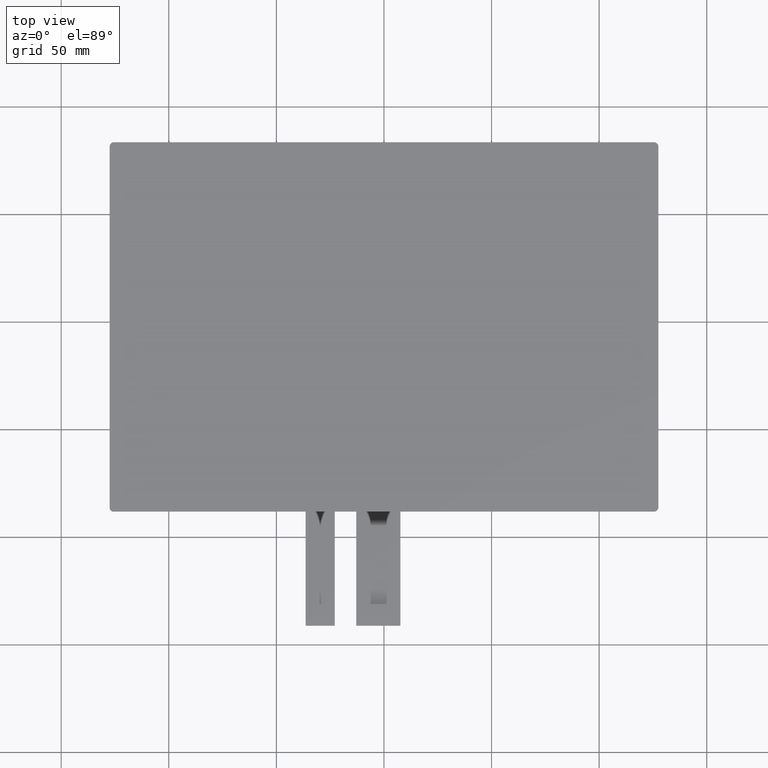
[diagram: clean part render]
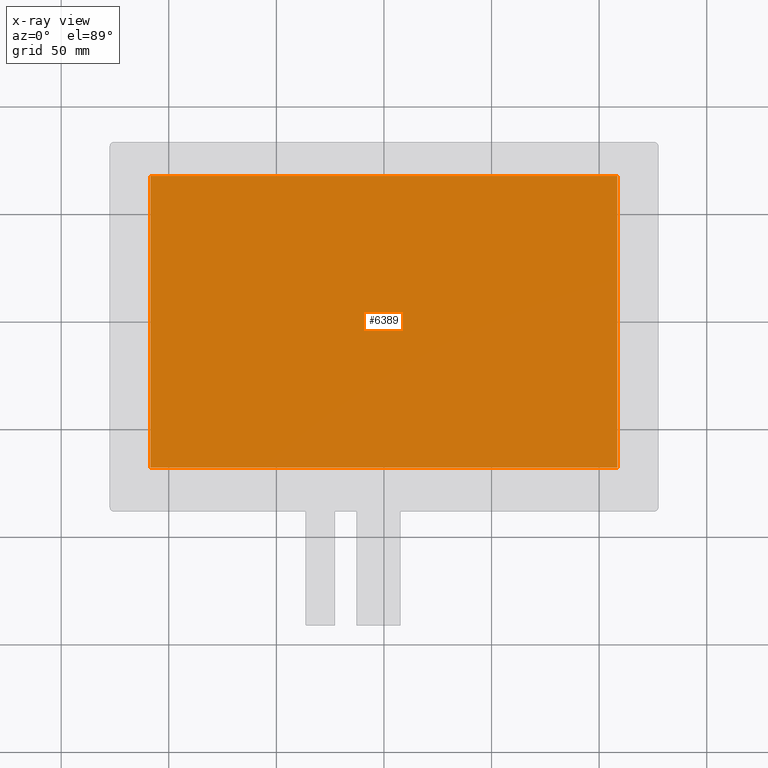
[diagram: x-ray — body ghosted, one internal face saturated and labeled with its STEP entity id]
A machine part, top view, then the same camera in x-ray: the body is ghosted and one INTERNAL B-rep face — a face not visible from any outside direction — is saturated and labeled: STEP entity #6389.
In plain terms, the highlighted planar face has unit normal (0, 0, -1).
Its self-contained STEP definition (entity closure, byte-faithful):
#345=FACE_OUTER_BOUND('',#657,.T.);
#657=EDGE_LOOP('',(#5747,#5748,#5749,#5750));
#1539=LINE('',#10073,#2427);
#1540=LINE('',#10075,#2428);
#1541=LINE('',#10077,#2429);
#1542=LINE('',#10078,#2430);
#2427=VECTOR('',#8257,10.);
#2428=VECTOR('',#8258,10.);
#2429=VECTOR('',#8259,10.);
#2430=VECTOR('',#8260,10.);
#3051=VERTEX_POINT('',#10071);
#3052=VERTEX_POINT('',#10072);
#3053=VERTEX_POINT('',#10074);
#3054=VERTEX_POINT('',#10076);
#3951=EDGE_CURVE('',#3051,#3052,#1539,.T.);
#3952=EDGE_CURVE('',#3053,#3051,#1540,.T.);
#3953=EDGE_CURVE('',#3054,#3053,#1541,.T.);
#3954=EDGE_CURVE('',#3052,#3054,#1542,.T.);
#5747=ORIENTED_EDGE('',*,*,#3951,.F.);
#5748=ORIENTED_EDGE('',*,*,#3952,.F.);
#5749=ORIENTED_EDGE('',*,*,#3953,.F.);
#5750=ORIENTED_EDGE('',*,*,#3954,.F.);
#6065=PLANE('',#6735);
#6389=ADVANCED_FACE('',(#345),#6065,.F.);
#6735=AXIS2_PLACEMENT_3D('',#10070,#8255,#8256);
#8255=DIRECTION('center_axis',(0.,0.,-1.));
#8256=DIRECTION('ref_axis',(-1.,0.,0.));
#8257=DIRECTION('',(-1.,0.,0.));
#8258=DIRECTION('',(0.,-1.,0.));
#8259=DIRECTION('',(1.,0.,0.));
#8260=DIRECTION('',(0.,1.,0.));
#10070=CARTESIAN_POINT('Origin',(0.,8.88178419700125E-15,-0.1));
#10071=CARTESIAN_POINT('',(108.48,-67.8,-0.1));
#10072=CARTESIAN_POINT('',(-108.48,-67.8,-0.1));
#10073=CARTESIAN_POINT('',(-108.48,-67.8,-0.1));
#10074=CARTESIAN_POINT('',(108.48,67.8,-0.1));
#10075=CARTESIAN_POINT('',(108.48,-67.8,-0.1));
#10076=CARTESIAN_POINT('',(-108.48,67.8,-0.1));
#10077=CARTESIAN_POINT('',(108.48,67.8,-0.1));
#10078=CARTESIAN_POINT('',(-108.48,67.8,-0.1));